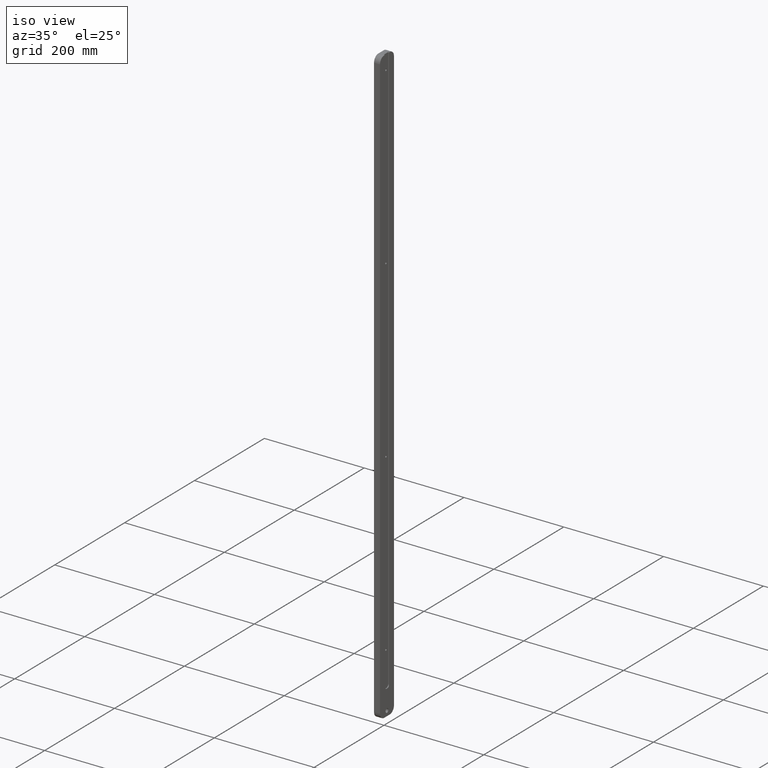
[diagram: clean part render]
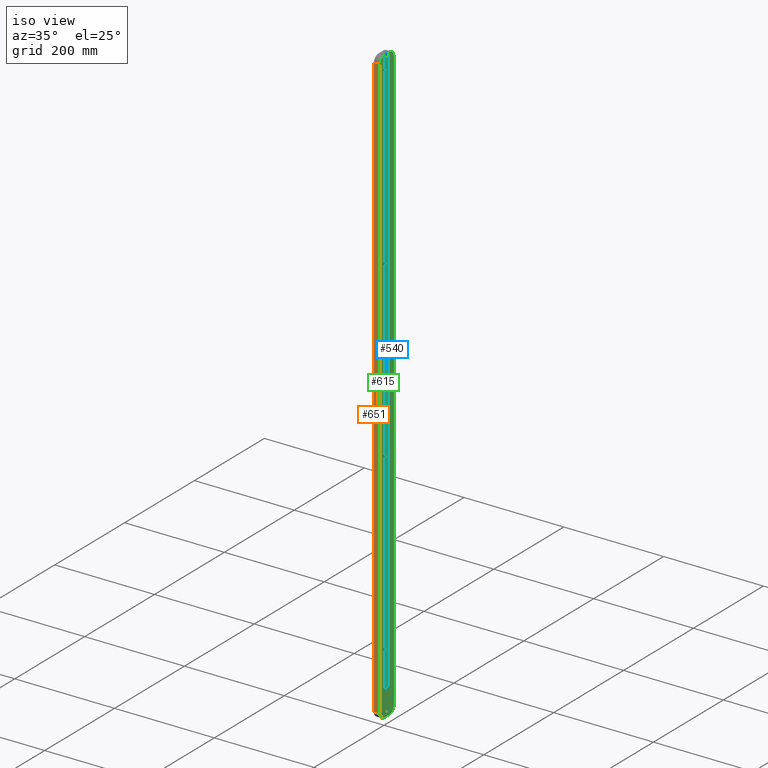
[diagram: same view with three faces highlighted in distinct colors, each labeled with its STEP entity id]
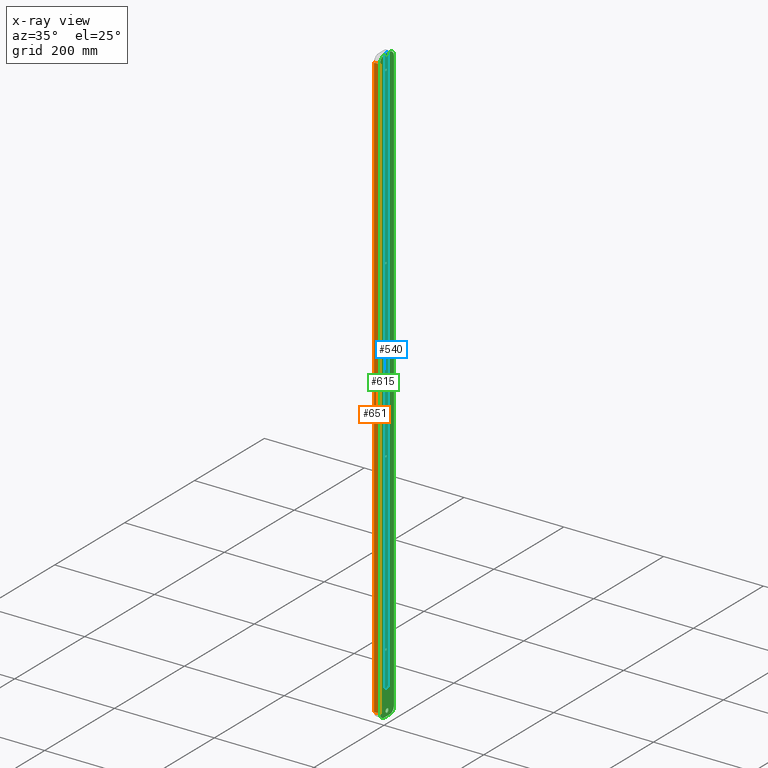
[diagram: x-ray of the same camera — body ghosted, the three highlighted faces saturated]
A machine part, iso view with three faces highlighted in distinct colors.
The next image is the same camera in x-ray (body ghosted, the three faces saturated) — at least one of them is partly hidden behind the body in this view.
Their STEP definitions:

[orange] entity #651 — the highlighted planar face has unit normal (0, 1, 0).
#29 = VECTOR ( 'NONE', #46, 1000.000000000000000 ) ;
#46 = DIRECTION ( 'NONE',  ( 1.000000000000000000, -0.0000000000000000000, 0.0000000000000000000 ) ) ;
#55 = VECTOR ( 'NONE', #217, 1000.000000000000000 ) ;
#71 = CARTESIAN_POINT ( 'NONE',  ( -5.999999999999993800, -20.00000000000000000, -588.0000000000000000 ) ) ;
#110 = VERTEX_POINT ( 'NONE', #620 ) ;
#217 = DIRECTION ( 'NONE',  ( -0.0000000000000000000, -0.0000000000000000000, -1.000000000000000000 ) ) ;
#233 = LINE ( 'NONE', #450, #55 ) ;
#260 = VERTEX_POINT ( 'NONE', #328 ) ;
#316 = LINE ( 'NONE', #805, #882 ) ;
#319 = ORIENTED_EDGE ( 'NONE', *, *, #745, .F. ) ;
#328 = CARTESIAN_POINT ( 'NONE',  ( 6.000000000000006200, -20.00000000000000000, 588.0000000000000000 ) ) ;
#378 = LINE ( 'NONE', #455, #406 ) ;
#381 = ORIENTED_EDGE ( 'NONE', *, *, #752, .T. ) ;
#382 = CARTESIAN_POINT ( 'NONE',  ( -5.999999999999993800, -20.00000000000000000, 588.0000000000000000 ) ) ;
#406 = VECTOR ( 'NONE', #594, 1000.000000000000000 ) ;
#416 = VERTEX_POINT ( 'NONE', #71 ) ;
#428 = VERTEX_POINT ( 'NONE', #382 ) ;
#450 = CARTESIAN_POINT ( 'NONE',  ( -5.999999999999993800, -20.00000000000000000, 600.0000000000000000 ) ) ;
#452 = DIRECTION ( 'NONE',  ( -0.0000000000000000000, -0.0000000000000000000, -1.000000000000000000 ) ) ;
#455 = CARTESIAN_POINT ( 'NONE',  ( -5.999999999999993800, -20.00000000000000000, 588.0000000000000000 ) ) ;
#517 = DIRECTION ( 'NONE',  ( 0.0000000000000000000, -0.0000000000000000000, 1.000000000000000000 ) ) ;
#537 = EDGE_CURVE ( 'NONE', #416, #110, #753, .T. ) ;
#563 = CARTESIAN_POINT ( 'NONE',  ( -5.999999999999993800, -20.00000000000000000, -588.0000000000000000 ) ) ;
#571 = CARTESIAN_POINT ( 'NONE',  ( -5.999999999999993800, -20.00000000000000000, 600.0000000000000000 ) ) ;
#594 = DIRECTION ( 'NONE',  ( -1.000000000000000000, 0.0000000000000000000, -0.0000000000000000000 ) ) ;
#596 = EDGE_CURVE ( 'NONE', #428, #416, #233, .T. ) ;
#617 = ORIENTED_EDGE ( 'NONE', *, *, #537, .T. ) ;
#620 = CARTESIAN_POINT ( 'NONE',  ( 6.000000000000006200, -20.00000000000000000, -588.0000000000000000 ) ) ;
#651 = ADVANCED_FACE ( 'NONE', ( #719 ), #906, .F. ) ;
#699 = ORIENTED_EDGE ( 'NONE', *, *, #596, .T. ) ;
#719 = FACE_OUTER_BOUND ( 'NONE', #869, .T. ) ;
#734 = AXIS2_PLACEMENT_3D ( 'NONE', #571, #848, #517 ) ;
#745 = EDGE_CURVE ( 'NONE', #260, #110, #316, .T. ) ;
#752 = EDGE_CURVE ( 'NONE', #260, #428, #378, .T. ) ;
#753 = LINE ( 'NONE', #563, #29 ) ;
#805 = CARTESIAN_POINT ( 'NONE',  ( 6.000000000000006200, -20.00000000000000000, 600.0000000000000000 ) ) ;
#848 = DIRECTION ( 'NONE',  ( 0.0000000000000000000, 1.000000000000000000, 0.0000000000000000000 ) ) ;
#869 = EDGE_LOOP ( 'NONE', ( #319, #381, #699, #617 ) ) ;
#882 = VECTOR ( 'NONE', #452, 1000.000000000000000 ) ;
#906 = PLANE ( 'NONE',  #734 ) ;

[blue] entity #540 — the highlighted planar face has unit normal (1, 0, -0).
#2 = CARTESIAN_POINT ( 'NONE',  ( 4.000000000000003600, -7.806255641895627000E-016, 221.9999999999999700 ) ) ;
#10 = ORIENTED_EDGE ( 'NONE', *, *, #656, .F. ) ;
#12 = DIRECTION ( 'NONE',  ( 0.0000000000000000000, 1.229390985148780800E-016, 1.000000000000000000 ) ) ;
#33 = CARTESIAN_POINT ( 'NONE',  ( 4.000000000000003600, -5.356962043600926000E-016, 568.0000000000000000 ) ) ;
#44 = CIRCLE ( 'NONE', #632, 1.999999999999998700 ) ;
#45 = CARTESIAN_POINT ( 'NONE',  ( 4.000000000000003600, -7.806255641895627000E-016, -130.0000000000000000 ) ) ;
#51 = FACE_BOUND ( 'NONE', #355, .T. ) ;
#66 = EDGE_CURVE ( 'NONE', #702, #398, #825, .T. ) ;
#67 = VERTEX_POINT ( 'NONE', #33 ) ;
#69 = CIRCLE ( 'NONE', #481, 5.000000000000000000 ) ;
#76 = DIRECTION ( 'NONE',  ( -1.445602896647339200E-016, 1.000000000000000000, 0.0000000000000000000 ) ) ;
#77 = CIRCLE ( 'NONE', #283, 1.999999999999998700 ) ;
#82 = CIRCLE ( 'NONE', #390, 5.000000000000000000 ) ;
#85 = CARTESIAN_POINT ( 'NONE',  ( 4.000000000000003600, 6.071532165918828800E-016, -1.066326701545922800E-031 ) ) ;
#94 = VECTOR ( 'NONE', #376, 1000.000000000000000 ) ;
#97 = VECTOR ( 'NONE', #12, 1000.000000000000000 ) ;
#104 = AXIS2_PLACEMENT_3D ( 'NONE', #546, #543, #701 ) ;
#122 = LINE ( 'NONE', #128, #97 ) ;
#123 = EDGE_CURVE ( 'NONE', #755, #739, #709, .T. ) ;
#128 = CARTESIAN_POINT ( 'NONE',  ( 4.000000000000002700, 5.999999999999859700, -549.9999999999998900 ) ) ;
#129 = AXIS2_PLACEMENT_3D ( 'NONE', #806, #385, #166 ) ;
#132 = CIRCLE ( 'NONE', #129, 1.999999999999998700 ) ;
#143 = AXIS2_PLACEMENT_3D ( 'NONE', #616, #609, #245 ) ;
#146 = VERTEX_POINT ( 'NONE', #562 ) ;
#152 = CARTESIAN_POINT ( 'NONE',  ( 4.000000000000003600, 0.9999999999998601100, -544.9999999999998900 ) ) ;
#158 = CARTESIAN_POINT ( 'NONE',  ( 4.000000000000003600, -7.806255641895627000E-016, 570.0000000000000000 ) ) ;
#162 = CIRCLE ( 'NONE', #683, 1.999999999999998700 ) ;
#165 = ORIENTED_EDGE ( 'NONE', *, *, #870, .T. ) ;
#166 = DIRECTION ( 'NONE',  ( 0.0000000000000000000, 1.000000000000000000, 0.0000000000000000000 ) ) ;
#180 = LINE ( 'NONE', #841, #363 ) ;
#181 = VERTEX_POINT ( 'NONE', #432 ) ;
#185 = CARTESIAN_POINT ( 'NONE',  ( 4.000000000000004400, -5.999999999999857900, -549.9999999999998900 ) ) ;
#197 = CARTESIAN_POINT ( 'NONE',  ( 4.000000000000003600, 0.9999999999998586700, -549.9999999999998900 ) ) ;
#200 = EDGE_CURVE ( 'NONE', #692, #291, #180, .T. ) ;
#203 = DIRECTION ( 'NONE',  ( 0.0000000000000000000, 1.000000000000000000, 0.0000000000000000000 ) ) ;
#208 = ORIENTED_EDGE ( 'NONE', *, *, #913, .F. ) ;
#224 = ORIENTED_EDGE ( 'NONE', *, *, #123, .F. ) ;
#226 = FACE_OUTER_BOUND ( 'NONE', #760, .T. ) ;
#232 = ORIENTED_EDGE ( 'NONE', *, *, #235, .F. ) ;
#235 = EDGE_CURVE ( 'NONE', #146, #839, #162, .T. ) ;
#245 = DIRECTION ( 'NONE',  ( 0.0000000000000000000, 1.000000000000000000, 0.0000000000000000000 ) ) ;
#278 = EDGE_LOOP ( 'NONE', ( #10, #208 ) ) ;
#283 = AXIS2_PLACEMENT_3D ( 'NONE', #158, #671, #597 ) ;
#291 = VERTEX_POINT ( 'NONE', #197 ) ;
#295 = DIRECTION ( 'NONE',  ( -1.734723475976807100E-016, 1.000000000000000000, 0.0000000000000000000 ) ) ;
#298 = CARTESIAN_POINT ( 'NONE',  ( 4.000000000000004400, -5.999999999999999100, 599.9999999999998900 ) ) ;
#327 = VERTEX_POINT ( 'NONE', #568 ) ;
#331 = EDGE_CURVE ( 'NONE', #398, #692, #69, .T. ) ;
#345 = EDGE_CURVE ( 'NONE', #839, #146, #44, .T. ) ;
#347 = VERTEX_POINT ( 'NONE', #468 ) ;
#351 = DIRECTION ( 'NONE',  ( 1.000000000000000000, 1.445602896647339200E-016, -1.777211169243203500E-032 ) ) ;
#353 = PLANE ( 'NONE',  #435 ) ;
#355 = EDGE_LOOP ( 'NONE', ( #883, #640 ) ) ;
#363 = VECTOR ( 'NONE', #425, 1000.000000000000000 ) ;
#376 = DIRECTION ( 'NONE',  ( 1.445602896647339200E-016, -1.000000000000000000, -0.0000000000000000000 ) ) ;
#379 = CARTESIAN_POINT ( 'NONE',  ( 4.000000000000003600, -5.356962043600926000E-016, -481.9999999999998900 ) ) ;
#385 = DIRECTION ( 'NONE',  ( 1.000000000000000000, 1.445602896647339200E-016, -1.777211169243203500E-032 ) ) ;
#390 = AXIS2_PLACEMENT_3D ( 'NONE', #152, #844, #295 ) ;
#392 = ORIENTED_EDGE ( 'NONE', *, *, #859, .F. ) ;
#398 = VERTEX_POINT ( 'NONE', #635 ) ;
#410 = ORIENTED_EDGE ( 'NONE', *, *, #577, .T. ) ;
#417 = DIRECTION ( 'NONE',  ( -0.0000000000000000000, 1.229390985148780800E-016, -1.000000000000000000 ) ) ;
#419 = FACE_BOUND ( 'NONE', #598, .T. ) ;
#425 = DIRECTION ( 'NONE',  ( -1.445602896647373400E-016, 1.000000000000000000, 0.0000000000000000000 ) ) ;
#430 = CARTESIAN_POINT ( 'NONE',  ( 4.000000000000003600, -0.9999999999998586700, -544.9999999999998900 ) ) ;
#432 = CARTESIAN_POINT ( 'NONE',  ( 4.000000000000002700, 5.999999999999860600, -544.9999999999998900 ) ) ;
#435 = AXIS2_PLACEMENT_3D ( 'NONE', #85, #508, #76 ) ;
#442 = CARTESIAN_POINT ( 'NONE',  ( 4.000000000000003600, -7.806255641895627000E-016, -477.9999999999998900 ) ) ;
#459 = CARTESIAN_POINT ( 'NONE',  ( 4.000000000000003600, -7.806255641895627000E-016, -128.0000000000000000 ) ) ;
#468 = CARTESIAN_POINT ( 'NONE',  ( 4.000000000000003600, -7.806255641895627000E-016, 572.0000000000000000 ) ) ;
#478 = CARTESIAN_POINT ( 'NONE',  ( 4.000000000000003600, -7.806255641895627000E-016, -130.0000000000000000 ) ) ;
#481 = AXIS2_PLACEMENT_3D ( 'NONE', #430, #351, #778 ) ;
#494 = ORIENTED_EDGE ( 'NONE', *, *, #66, .T. ) ;
#506 = CIRCLE ( 'NONE', #143, 1.999999999999998700 ) ;
#508 = DIRECTION ( 'NONE',  ( 1.000000000000000000, 1.445602896647339200E-016, -1.777211169243203500E-032 ) ) ;
#509 = AXIS2_PLACEMENT_3D ( 'NONE', #868, #863, #591 ) ;
#520 = CARTESIAN_POINT ( 'NONE',  ( 4.000000000000003600, -5.356962043600926000E-016, 217.9999999999999700 ) ) ;
#523 = LINE ( 'NONE', #298, #94 ) ;
#524 = ORIENTED_EDGE ( 'NONE', *, *, #331, .T. ) ;
#540 = ADVANCED_FACE ( 'NONE', ( #419, #51, #226, #706, #685 ), #353, .T. ) ;
#543 = DIRECTION ( 'NONE',  ( 1.000000000000000000, 1.445602896647339200E-016, -1.777211169243203500E-032 ) ) ;
#546 = CARTESIAN_POINT ( 'NONE',  ( 4.000000000000003600, -7.806255641895627000E-016, 219.9999999999999700 ) ) ;
#548 = VERTEX_POINT ( 'NONE', #379 ) ;
#550 = CIRCLE ( 'NONE', #509, 1.999999999999998700 ) ;
#562 = CARTESIAN_POINT ( 'NONE',  ( 4.000000000000003600, -5.356962043600926000E-016, -132.0000000000000000 ) ) ;
#568 = CARTESIAN_POINT ( 'NONE',  ( 4.000000000000002700, 6.000000000000000900, 600.0000000000000000 ) ) ;
#572 = ORIENTED_EDGE ( 'NONE', *, *, #345, .F. ) ;
#577 = EDGE_CURVE ( 'NONE', #291, #181, #82, .T. ) ;
#591 = DIRECTION ( 'NONE',  ( 0.0000000000000000000, 1.000000000000000000, 0.0000000000000000000 ) ) ;
#597 = DIRECTION ( 'NONE',  ( 0.0000000000000000000, 1.000000000000000000, 0.0000000000000000000 ) ) ;
#598 = EDGE_LOOP ( 'NONE', ( #224, #392 ) ) ;
#609 = DIRECTION ( 'NONE',  ( 1.000000000000000000, 1.445602896647339200E-016, -1.777211169243203500E-032 ) ) ;
#616 = CARTESIAN_POINT ( 'NONE',  ( 4.000000000000003600, -7.806255641895627000E-016, -479.9999999999998900 ) ) ;
#623 = ORIENTED_EDGE ( 'NONE', *, *, #684, .T. ) ;
#632 = AXIS2_PLACEMENT_3D ( 'NONE', #45, #653, #203 ) ;
#635 = CARTESIAN_POINT ( 'NONE',  ( 4.000000000000004400, -5.999999999999858800, -544.9999999999998900 ) ) ;
#639 = CARTESIAN_POINT ( 'NONE',  ( 4.000000000000003600, -7.806255641895627000E-016, -479.9999999999998900 ) ) ;
#640 = ORIENTED_EDGE ( 'NONE', *, *, #794, .F. ) ;
#653 = DIRECTION ( 'NONE',  ( 1.000000000000000000, 1.445602896647339200E-016, -1.777211169243203500E-032 ) ) ;
#654 = DIRECTION ( 'NONE',  ( 0.0000000000000000000, 1.000000000000000000, 0.0000000000000000000 ) ) ;
#656 = EDGE_CURVE ( 'NONE', #720, #548, #896, .T. ) ;
#671 = DIRECTION ( 'NONE',  ( 1.000000000000000000, 1.445602896647339200E-016, -1.777211169243203500E-032 ) ) ;
#683 = AXIS2_PLACEMENT_3D ( 'NONE', #478, #907, #774 ) ;
#684 = EDGE_CURVE ( 'NONE', #181, #327, #122, .T. ) ;
#685 = FACE_BOUND ( 'NONE', #278, .T. ) ;
#692 = VERTEX_POINT ( 'NONE', #797 ) ;
#701 = DIRECTION ( 'NONE',  ( 0.0000000000000000000, 1.000000000000000000, 0.0000000000000000000 ) ) ;
#702 = VERTEX_POINT ( 'NONE', #748 ) ;
#705 = EDGE_LOOP ( 'NONE', ( #572, #232 ) ) ;
#706 = FACE_BOUND ( 'NONE', #705, .T. ) ;
#709 = CIRCLE ( 'NONE', #104, 1.999999999999998700 ) ;
#720 = VERTEX_POINT ( 'NONE', #442 ) ;
#723 = EDGE_CURVE ( 'NONE', #347, #67, #550, .T. ) ;
#739 = VERTEX_POINT ( 'NONE', #520 ) ;
#748 = CARTESIAN_POINT ( 'NONE',  ( 4.000000000000004400, -5.999999999999999100, 599.9999999999998900 ) ) ;
#755 = VERTEX_POINT ( 'NONE', #2 ) ;
#760 = EDGE_LOOP ( 'NONE', ( #494, #524, #783, #410, #623, #165 ) ) ;
#768 = AXIS2_PLACEMENT_3D ( 'NONE', #639, #864, #654 ) ;
#774 = DIRECTION ( 'NONE',  ( 0.0000000000000000000, 1.000000000000000000, 0.0000000000000000000 ) ) ;
#778 = DIRECTION ( 'NONE',  ( -1.734723475976807100E-016, 1.000000000000000000, 0.0000000000000000000 ) ) ;
#783 = ORIENTED_EDGE ( 'NONE', *, *, #200, .T. ) ;
#792 = VECTOR ( 'NONE', #417, 1000.000000000000000 ) ;
#794 = EDGE_CURVE ( 'NONE', #67, #347, #77, .T. ) ;
#797 = CARTESIAN_POINT ( 'NONE',  ( 4.000000000000003600, -0.9999999999998603300, -549.9999999999998900 ) ) ;
#806 = CARTESIAN_POINT ( 'NONE',  ( 4.000000000000003600, -7.806255641895627000E-016, 219.9999999999999700 ) ) ;
#825 = LINE ( 'NONE', #185, #792 ) ;
#839 = VERTEX_POINT ( 'NONE', #459 ) ;
#841 = CARTESIAN_POINT ( 'NONE',  ( 4.000000000000004400, -5.999999999999857900, -549.9999999999998900 ) ) ;
#844 = DIRECTION ( 'NONE',  ( 1.000000000000000000, 1.445602896647339200E-016, -1.777211169243203500E-032 ) ) ;
#859 = EDGE_CURVE ( 'NONE', #739, #755, #132, .T. ) ;
#863 = DIRECTION ( 'NONE',  ( 1.000000000000000000, 1.445602896647339200E-016, -1.777211169243203500E-032 ) ) ;
#864 = DIRECTION ( 'NONE',  ( 1.000000000000000000, 1.445602896647339200E-016, -1.777211169243203500E-032 ) ) ;
#868 = CARTESIAN_POINT ( 'NONE',  ( 4.000000000000003600, -7.806255641895627000E-016, 570.0000000000000000 ) ) ;
#870 = EDGE_CURVE ( 'NONE', #327, #702, #523, .T. ) ;
#883 = ORIENTED_EDGE ( 'NONE', *, *, #723, .F. ) ;
#896 = CIRCLE ( 'NONE', #768, 1.999999999999998700 ) ;
#907 = DIRECTION ( 'NONE',  ( 1.000000000000000000, 1.445602896647339200E-016, -1.777211169243203500E-032 ) ) ;
#913 = EDGE_CURVE ( 'NONE', #548, #720, #506, .T. ) ;

[green] entity #615 — the highlighted planar face has unit normal (-1, -0, 0).
#14 = CIRCLE ( 'NONE', #461, 3.999999999999992500 ) ;
#23 = CARTESIAN_POINT ( 'NONE',  ( 6.000000000000003600, 7.806255641895636900E-016, -590.0000000000000000 ) ) ;
#35 = VECTOR ( 'NONE', #62, 1000.000000000000000 ) ;
#42 = CARTESIAN_POINT ( 'NONE',  ( 6.000000000000004400, -8.000000000000000000, -588.0000000000000000 ) ) ;
#49 = DIRECTION ( 'NONE',  ( 1.445602896647339200E-016, -1.000000000000000000, 0.0000000000000000000 ) ) ;
#54 = DIRECTION ( 'NONE',  ( -1.445602896647373400E-016, 1.000000000000000000, 0.0000000000000000000 ) ) ;
#62 = DIRECTION ( 'NONE',  ( -1.301042606982605300E-016, 1.000000000000000000, -0.0000000000000000000 ) ) ;
#68 = DIRECTION ( 'NONE',  ( 1.000000000000000000, 1.301042606982605300E-016, -0.0000000000000000000 ) ) ;
#70 = VECTOR ( 'NONE', #54, 1000.000000000000000 ) ;
#74 = LINE ( 'NONE', #358, #70 ) ;
#75 = CARTESIAN_POINT ( 'NONE',  ( 6.000000000000002700, 8.000000000000000000, -588.0000000000000000 ) ) ;
#78 = AXIS2_PLACEMENT_3D ( 'NONE', #821, #141, #323 ) ;
#86 = ORIENTED_EDGE ( 'NONE', *, *, #309, .F. ) ;
#98 = CIRCLE ( 'NONE', #833, 12.00000000000000000 ) ;
#100 = ORIENTED_EDGE ( 'NONE', *, *, #660, .F. ) ;
#103 = AXIS2_PLACEMENT_3D ( 'NONE', #333, #422, #648 ) ;
#109 = VERTEX_POINT ( 'NONE', #624 ) ;
#110 = VERTEX_POINT ( 'NONE', #620 ) ;
#114 = DIRECTION ( 'NONE',  ( -2.168404344971013100E-016, 1.000000000000000000, 0.0000000000000000000 ) ) ;
#120 = VECTOR ( 'NONE', #210, 1000.000000000000000 ) ;
#121 = DIRECTION ( 'NONE',  ( 1.445602896647339200E-016, -1.000000000000000000, 0.0000000000000000000 ) ) ;
#125 = LINE ( 'NONE', #495, #120 ) ;
#141 = DIRECTION ( 'NONE',  ( -1.000000000000000000, -1.301042606982605300E-016, 0.0000000000000000000 ) ) ;
#147 = DIRECTION ( 'NONE',  ( -1.301042606982605300E-016, 1.000000000000000000, -0.0000000000000000000 ) ) ;
#149 = VERTEX_POINT ( 'NONE', #658 ) ;
#153 = CARTESIAN_POINT ( 'NONE',  ( 6.000000000000002700, 6.000000000000000900, 599.9999999999998900 ) ) ;
#161 = ORIENTED_EDGE ( 'NONE', *, *, #207, .T. ) ;
#170 = AXIS2_PLACEMENT_3D ( 'NONE', #23, #810, #241 ) ;
#174 = CIRCLE ( 'NONE', #766, 5.000000000000000000 ) ;
#176 = ORIENTED_EDGE ( 'NONE', *, *, #745, .T. ) ;
#183 = EDGE_CURVE ( 'NONE', #690, #710, #187, .T. ) ;
#186 = VECTOR ( 'NONE', #771, 1000.000000000000000 ) ;
#187 = LINE ( 'NONE', #756, #186 ) ;
#188 = CIRCLE ( 'NONE', #867, 12.00000000000000000 ) ;
#189 = DIRECTION ( 'NONE',  ( 1.000000000000000000, 1.301042606982605300E-016, -0.0000000000000000000 ) ) ;
#199 = DIRECTION ( 'NONE',  ( 1.000000000000000000, 1.301042606982605300E-016, -0.0000000000000000000 ) ) ;
#204 = CARTESIAN_POINT ( 'NONE',  ( 6.000000000000002700, 8.000000000000000000, 600.0000000000000000 ) ) ;
#207 = EDGE_CURVE ( 'NONE', #109, #515, #174, .T. ) ;
#210 = DIRECTION ( 'NONE',  ( -1.301042606982605300E-016, 1.000000000000000000, -0.0000000000000000000 ) ) ;
#227 = EDGE_CURVE ( 'NONE', #638, #686, #188, .T. ) ;
#228 = CARTESIAN_POINT ( 'NONE',  ( 6.000000000000004400, -5.999999999999858800, -544.9999999999998900 ) ) ;
#240 = DIRECTION ( 'NONE',  ( 1.301042606982605300E-016, -1.000000000000000000, 0.0000000000000000000 ) ) ;
#241 = DIRECTION ( 'NONE',  ( -2.168404344971013100E-016, 1.000000000000000000, 0.0000000000000000000 ) ) ;
#243 = VERTEX_POINT ( 'NONE', #704 ) ;
#260 = VERTEX_POINT ( 'NONE', #328 ) ;
#267 = CARTESIAN_POINT ( 'NONE',  ( 6.000000000000000900, 20.00000000000000000, 600.0000000000000000 ) ) ;
#272 = DIRECTION ( 'NONE',  ( -1.000000000000000000, -1.301042606982605300E-016, 0.0000000000000000000 ) ) ;
#280 = CARTESIAN_POINT ( 'NONE',  ( 6.000000000000002700, 8.000000000000000000, -600.0000000000000000 ) ) ;
#282 = VERTEX_POINT ( 'NONE', #204 ) ;
#290 = FACE_BOUND ( 'NONE', #383, .T. ) ;
#297 = EDGE_CURVE ( 'NONE', #690, #688, #555, .T. ) ;
#301 = ORIENTED_EDGE ( 'NONE', *, *, #297, .T. ) ;
#309 = EDGE_CURVE ( 'NONE', #710, #282, #125, .T. ) ;
#310 = LINE ( 'NONE', #769, #910 ) ;
#316 = LINE ( 'NONE', #805, #882 ) ;
#320 = FACE_OUTER_BOUND ( 'NONE', #579, .T. ) ;
#323 = DIRECTION ( 'NONE',  ( 1.734723475976807100E-016, -1.000000000000000000, 0.0000000000000000000 ) ) ;
#326 = EDGE_CURVE ( 'NONE', #109, #688, #74, .T. ) ;
#328 = CARTESIAN_POINT ( 'NONE',  ( 6.000000000000006200, -20.00000000000000000, 588.0000000000000000 ) ) ;
#329 = EDGE_CURVE ( 'NONE', #110, #149, #98, .T. ) ;
#330 = AXIS2_PLACEMENT_3D ( 'NONE', #666, #199, #454 ) ;
#333 = CARTESIAN_POINT ( 'NONE',  ( 6.000000000000004400, -8.000000000000000000, 588.0000000000000000 ) ) ;
#341 = DIRECTION ( 'NONE',  ( -0.0000000000000000000, -0.0000000000000000000, -1.000000000000000000 ) ) ;
#358 = CARTESIAN_POINT ( 'NONE',  ( 6.000000000000004400, -5.999999999999857900, -549.9999999999998900 ) ) ;
#370 = LINE ( 'NONE', #835, #541 ) ;
#372 = EDGE_CURVE ( 'NONE', #672, #852, #14, .T. ) ;
#383 = EDGE_LOOP ( 'NONE', ( #853, #647 ) ) ;
#399 = ORIENTED_EDGE ( 'NONE', *, *, #605, .T. ) ;
#402 = EDGE_CURVE ( 'NONE', #243, #515, #310, .T. ) ;
#409 = DIRECTION ( 'NONE',  ( 1.734723475976807100E-016, -1.000000000000000000, 0.0000000000000000000 ) ) ;
#421 = DIRECTION ( 'NONE',  ( -1.000000000000000000, -1.301042606982605300E-016, 0.0000000000000000000 ) ) ;
#422 = DIRECTION ( 'NONE',  ( 1.000000000000000000, 1.301042606982605300E-016, -0.0000000000000000000 ) ) ;
#439 = CARTESIAN_POINT ( 'NONE',  ( 6.000000000000004400, -8.000000000000000000, 600.0000000000000000 ) ) ;
#452 = DIRECTION ( 'NONE',  ( -0.0000000000000000000, -0.0000000000000000000, -1.000000000000000000 ) ) ;
#454 = DIRECTION ( 'NONE',  ( 1.445602896647339200E-016, -1.000000000000000000, 0.0000000000000000000 ) ) ;
#461 = AXIS2_PLACEMENT_3D ( 'NONE', #696, #854, #114 ) ;
#495 = CARTESIAN_POINT ( 'NONE',  ( 6.000000000000000900, 20.00000000000000000, 600.0000000000000000 ) ) ;
#496 = DIRECTION ( 'NONE',  ( -0.0000000000000000000, 1.229390985148780800E-016, -1.000000000000000000 ) ) ;
#515 = VERTEX_POINT ( 'NONE', #228 ) ;
#521 = EDGE_CURVE ( 'NONE', #149, #638, #731, .T. ) ;
#525 = CARTESIAN_POINT ( 'NONE',  ( 6.000000000000002700, 3.999999999999993300, -590.0000000000000000 ) ) ;
#526 = ORIENTED_EDGE ( 'NONE', *, *, #521, .T. ) ;
#541 = VECTOR ( 'NONE', #341, 1000.000000000000000 ) ;
#555 = CIRCLE ( 'NONE', #78, 5.000000000000000000 ) ;
#558 = VERTEX_POINT ( 'NONE', #439 ) ;
#564 = CIRCLE ( 'NONE', #330, 12.00000000000000000 ) ;
#565 = EDGE_CURVE ( 'NONE', #558, #260, #614, .T. ) ;
#579 = EDGE_LOOP ( 'NONE', ( #86, #897, #301, #889, #161, #643, #799, #892, #176, #845, #526, #728, #100, #399 ) ) ;
#590 = VECTOR ( 'NONE', #147, 1000.000000000000000 ) ;
#605 = EDGE_CURVE ( 'NONE', #904, #282, #564, .T. ) ;
#614 = CIRCLE ( 'NONE', #103, 12.00000000000000000 ) ;
#615 = ADVANCED_FACE ( 'NONE', ( #290, #320 ), #908, .F. ) ;
#620 = CARTESIAN_POINT ( 'NONE',  ( 6.000000000000006200, -20.00000000000000000, -588.0000000000000000 ) ) ;
#624 = CARTESIAN_POINT ( 'NONE',  ( 6.000000000000003600, -0.9999999999998603300, -549.9999999999998900 ) ) ;
#638 = VERTEX_POINT ( 'NONE', #280 ) ;
#643 = ORIENTED_EDGE ( 'NONE', *, *, #402, .F. ) ;
#647 = ORIENTED_EDGE ( 'NONE', *, *, #831, .F. ) ;
#648 = DIRECTION ( 'NONE',  ( 1.445602896647339200E-016, -1.000000000000000000, 0.0000000000000000000 ) ) ;
#658 = CARTESIAN_POINT ( 'NONE',  ( 6.000000000000004400, -8.000000000000000000, -600.0000000000000000 ) ) ;
#660 = EDGE_CURVE ( 'NONE', #904, #686, #370, .T. ) ;
#666 = CARTESIAN_POINT ( 'NONE',  ( 6.000000000000002700, 8.000000000000000000, 588.0000000000000000 ) ) ;
#668 = CARTESIAN_POINT ( 'NONE',  ( 6.000000000000002700, 5.999999999999860600, -544.9999999999998900 ) ) ;
#669 = CARTESIAN_POINT ( 'NONE',  ( 6.000000000000000900, 20.00000000000000000, -588.0000000000000000 ) ) ;
#672 = VERTEX_POINT ( 'NONE', #525 ) ;
#679 = CIRCLE ( 'NONE', #170, 3.999999999999992500 ) ;
#686 = VERTEX_POINT ( 'NONE', #669 ) ;
#688 = VERTEX_POINT ( 'NONE', #866 ) ;
#690 = VERTEX_POINT ( 'NONE', #668 ) ;
#696 = CARTESIAN_POINT ( 'NONE',  ( 6.000000000000003600, 7.806255641895636900E-016, -590.0000000000000000 ) ) ;
#704 = CARTESIAN_POINT ( 'NONE',  ( 6.000000000000004400, -5.999999999999999100, 599.9999999999998900 ) ) ;
#708 = CARTESIAN_POINT ( 'NONE',  ( 6.000000000000000900, 20.00000000000000000, -600.0000000000000000 ) ) ;
#710 = VERTEX_POINT ( 'NONE', #153 ) ;
#711 = EDGE_CURVE ( 'NONE', #558, #243, #712, .T. ) ;
#712 = LINE ( 'NONE', #874, #590 ) ;
#728 = ORIENTED_EDGE ( 'NONE', *, *, #227, .T. ) ;
#731 = LINE ( 'NONE', #708, #35 ) ;
#745 = EDGE_CURVE ( 'NONE', #260, #110, #316, .T. ) ;
#756 = CARTESIAN_POINT ( 'NONE',  ( 6.000000000000002700, 5.999999999999859700, -549.9999999999998900 ) ) ;
#766 = AXIS2_PLACEMENT_3D ( 'NONE', #823, #421, #409 ) ;
#769 = CARTESIAN_POINT ( 'NONE',  ( 6.000000000000004400, -5.999999999999857900, -549.9999999999998900 ) ) ;
#771 = DIRECTION ( 'NONE',  ( 0.0000000000000000000, 1.229390985148780800E-016, 1.000000000000000000 ) ) ;
#776 = AXIS2_PLACEMENT_3D ( 'NONE', #267, #272, #240 ) ;
#799 = ORIENTED_EDGE ( 'NONE', *, *, #711, .F. ) ;
#805 = CARTESIAN_POINT ( 'NONE',  ( 6.000000000000006200, -20.00000000000000000, 600.0000000000000000 ) ) ;
#810 = DIRECTION ( 'NONE',  ( 1.000000000000000000, 1.301042606982605300E-016, 0.0000000000000000000 ) ) ;
#821 = CARTESIAN_POINT ( 'NONE',  ( 6.000000000000003600, 0.9999999999998603300, -544.9999999999998900 ) ) ;
#823 = CARTESIAN_POINT ( 'NONE',  ( 6.000000000000003600, -0.9999999999998584500, -544.9999999999998900 ) ) ;
#831 = EDGE_CURVE ( 'NONE', #852, #672, #679, .T. ) ;
#833 = AXIS2_PLACEMENT_3D ( 'NONE', #42, #189, #121 ) ;
#835 = CARTESIAN_POINT ( 'NONE',  ( 6.000000000000000900, 20.00000000000000000, 600.0000000000000000 ) ) ;
#845 = ORIENTED_EDGE ( 'NONE', *, *, #329, .T. ) ;
#852 = VERTEX_POINT ( 'NONE', #879 ) ;
#853 = ORIENTED_EDGE ( 'NONE', *, *, #372, .F. ) ;
#854 = DIRECTION ( 'NONE',  ( 1.000000000000000000, 1.301042606982605300E-016, 0.0000000000000000000 ) ) ;
#866 = CARTESIAN_POINT ( 'NONE',  ( 6.000000000000003600, 0.9999999999998586700, -549.9999999999998900 ) ) ;
#867 = AXIS2_PLACEMENT_3D ( 'NONE', #75, #68, #49 ) ;
#873 = CARTESIAN_POINT ( 'NONE',  ( 6.000000000000000900, 20.00000000000000000, 588.0000000000000000 ) ) ;
#874 = CARTESIAN_POINT ( 'NONE',  ( 6.000000000000000900, 20.00000000000000000, 600.0000000000000000 ) ) ;
#879 = CARTESIAN_POINT ( 'NONE',  ( 6.000000000000004400, -3.999999999999991600, -590.0000000000000000 ) ) ;
#882 = VECTOR ( 'NONE', #452, 1000.000000000000000 ) ;
#889 = ORIENTED_EDGE ( 'NONE', *, *, #326, .F. ) ;
#892 = ORIENTED_EDGE ( 'NONE', *, *, #565, .T. ) ;
#897 = ORIENTED_EDGE ( 'NONE', *, *, #183, .F. ) ;
#904 = VERTEX_POINT ( 'NONE', #873 ) ;
#908 = PLANE ( 'NONE',  #776 ) ;
#910 = VECTOR ( 'NONE', #496, 1000.000000000000000 ) ;